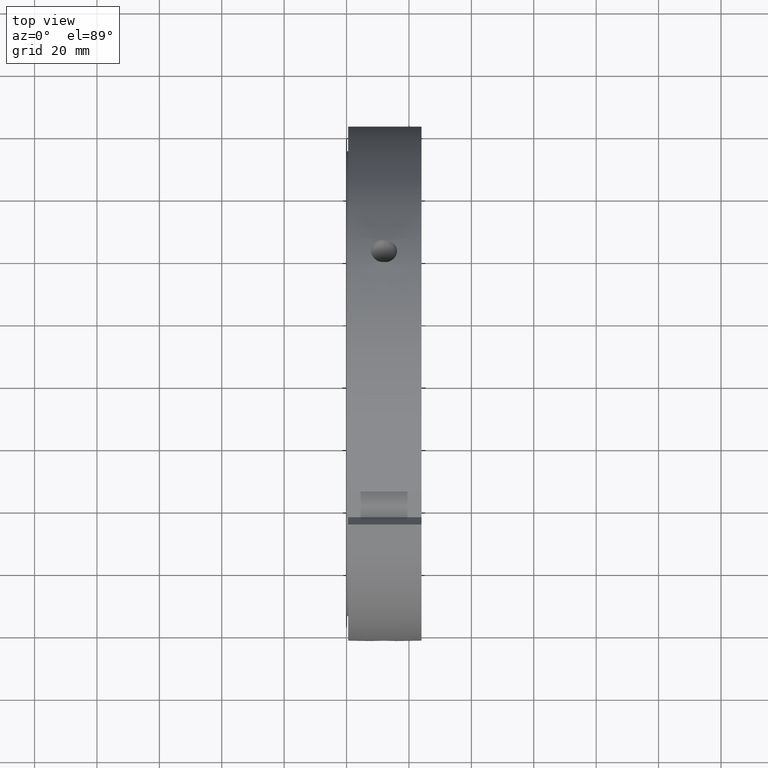
[diagram: clean part render]
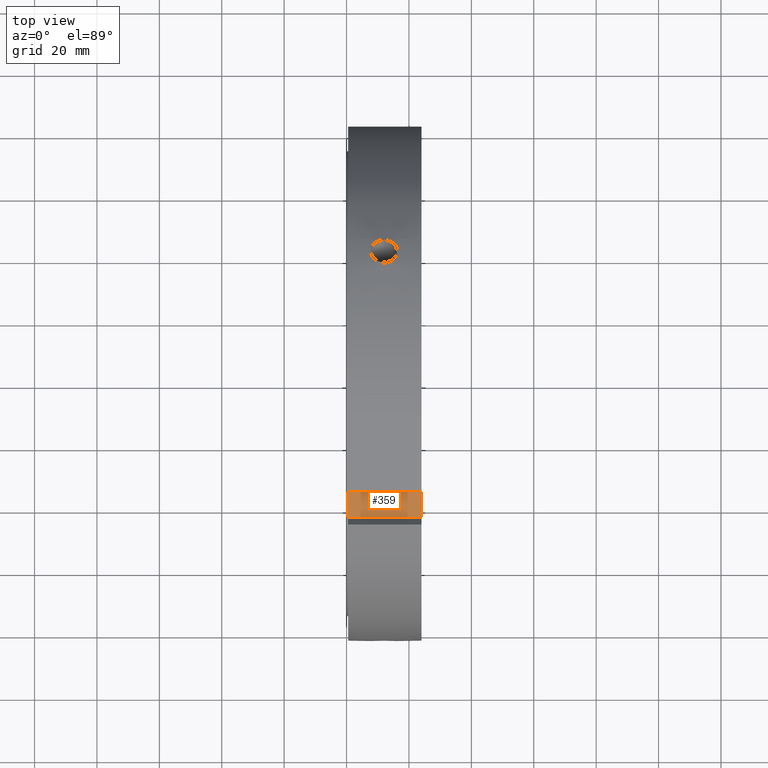
[diagram: same view with one face highlighted and labeled with its STEP entity id]
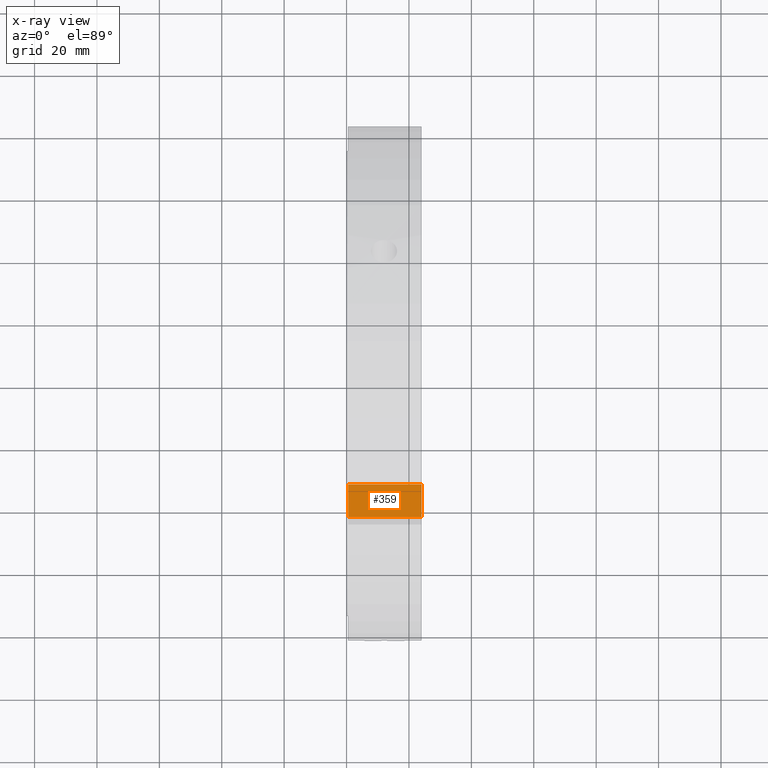
[diagram: x-ray of the same camera — body ghosted, the highlighted face saturated]
A machine part, top view. The second image highlights one B-rep face of the part: STEP entity #359.
The next image is the same camera in x-ray: the body ghosted, the highlighted face saturated — about 0% of this face is hidden behind the body in this view.
In plain terms, the highlighted planar face has unit normal (0, 0.5, -0.866).
Its self-contained STEP definition (entity closure, byte-faithful):
#263=CARTESIAN_POINT('',(0.499999999999976,-33.553847577293354,70.116968793294006));
#264=VERTEX_POINT('',#263);
#273=CARTESIAN_POINT('',(23.999999999999986,-33.553847577293354,70.116968793294006));
#274=VERTEX_POINT('',#273);
#275=CARTESIAN_POINT('',(23.999999999999986,-33.553847577293354,70.116968793294006));
#276=DIRECTION('',(-1.0,0.0,0.0));
#277=VECTOR('',#276,23.500000000000011);
#278=LINE('',#275,#277);
#279=EDGE_CURVE('',#274,#264,#278,.T.);
#305=CARTESIAN_POINT('',(0.499999999999976,-43.946152422706618,64.116968793294006));
#306=VERTEX_POINT('',#305);
#321=CARTESIAN_POINT('',(23.999999999999986,-43.946152422706618,64.116968793294006));
#322=VERTEX_POINT('',#321);
#329=CARTESIAN_POINT('',(23.999999999999986,-43.946152422706618,64.116968793294006));
#330=DIRECTION('',(-1.0,0.0,0.0));
#331=VECTOR('',#330,23.500000000000011);
#332=LINE('',#329,#331);
#333=EDGE_CURVE('',#322,#306,#332,.T.);
#338=CARTESIAN_POINT('',(23.999999999999986,-43.946152422706618,64.116968793294006));
#339=DIRECTION('',(0.0,0.500000000000000,-0.866025403784439));
#340=DIRECTION('',(0.0,0.866025403784439,0.500000000000000));
#341=AXIS2_PLACEMENT_3D('',#338,#339,#340);
#342=PLANE('',#341);
#343=CARTESIAN_POINT('',(0.499999999999980,-43.946152422706632,64.116968793294006));
#344=DIRECTION('',(0.0,0.866025403784439,0.500000000000000));
#345=VECTOR('',#344,12.000000000000007);
#346=LINE('',#343,#345);
#347=EDGE_CURVE('',#306,#264,#346,.T.);
#348=ORIENTED_EDGE('',*,*,#347,.F.);
#349=ORIENTED_EDGE('',*,*,#333,.F.);
#350=CARTESIAN_POINT('',(23.999999999999986,-33.553847577293361,70.116968793294006));
#351=DIRECTION('',(0.0,-0.866025403784439,-0.500000000000000));
#352=VECTOR('',#351,12.0);
#353=LINE('',#350,#352);
#354=EDGE_CURVE('',#274,#322,#353,.T.);
#355=ORIENTED_EDGE('',*,*,#354,.F.);
#356=ORIENTED_EDGE('',*,*,#279,.T.);
#357=EDGE_LOOP('',(#348,#349,#355,#356));
#358=FACE_OUTER_BOUND('',#357,.T.);
#359=ADVANCED_FACE('',(#358),#342,.F.);